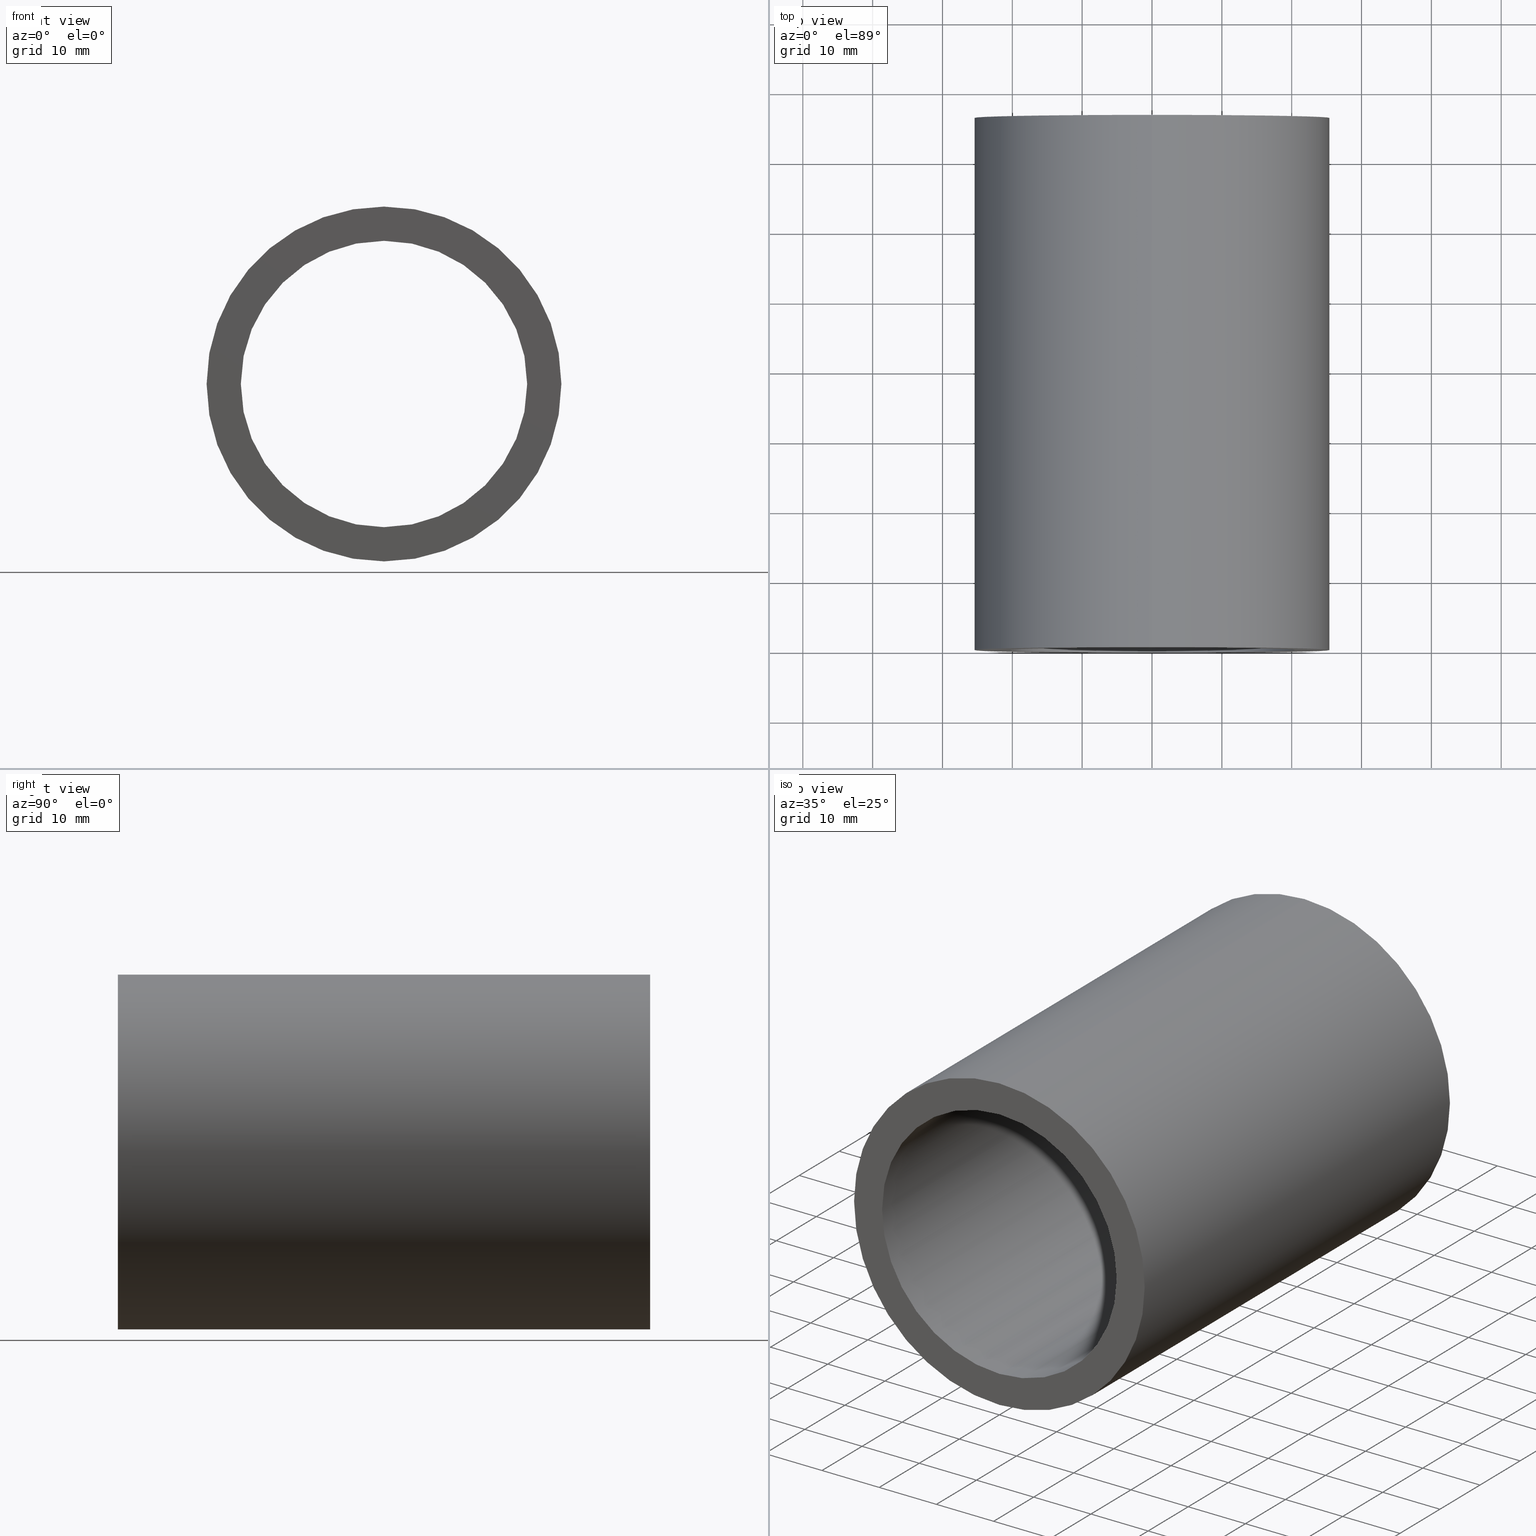
[diagram: canonical four-view strip — front | top / right | iso, engineering-drawing reading convention]
A machine part, canonical four-view strip (front | top / right | iso — engineering-drawing reading convention). The complete STEP part file that produces these views, byte-faithful:
ISO-10303-21;
HEADER;
FILE_DESCRIPTION (( 'STEP AP214' ),
    '1' );
FILE_NAME ('503028.STEP',
    '2019-09-05T06:27:18',
    ( '' ),
    ( '' ),
    'SwSTEP 2.0',
    'SolidWorks 2016',
    '' );
FILE_SCHEMA (( 'AUTOMOTIVE_DESIGN' ));
ENDSEC;

DATA;
#1 = CARTESIAN_POINT ( 'NONE',  ( 0.0000000000000000000, 76.19999999999998900, 0.0000000000000000000 ) ) ;
#2 = MECHANICAL_DESIGN_GEOMETRIC_PRESENTATION_REPRESENTATION (  '', ( #18 ), #93 ) ;
#3 = DIRECTION ( 'NONE',  ( -0.0000000000000000000, 1.000000000000000000, -0.0000000000000000000 ) ) ;
#4 = EDGE_LOOP ( 'NONE', ( #240, #125, #47, #218 ) ) ;
#5 = DIRECTION ( 'NONE',  ( 0.0000000000000000000, 0.0000000000000000000, 1.000000000000000000 ) ) ;
#6 = APPLICATION_PROTOCOL_DEFINITION ( 'draft international standard', 'automotive_design', 1998, #135 ) ;
#7 = FACE_OUTER_BOUND ( 'NONE', #45, .T. ) ;
#8 = ORIENTED_EDGE ( 'NONE', *, *, #142, .F. ) ;
#9 = STYLED_ITEM ( 'NONE', ( #96 ), #10 ) ;
#10 = ADVANCED_BREP_SHAPE_REPRESENTATION ( '503028', ( #243, #166 ), #84 ) ;
#11 = EDGE_CURVE ( 'NONE', #156, #111, #233, .T. ) ;
#12 = FACE_BOUND ( 'NONE', #201, .T. ) ;
#13 = DIRECTION ( 'NONE',  ( 0.0000000000000000000, 0.0000000000000000000, 1.000000000000000000 ) ) ;
#14 = DIRECTION ( 'NONE',  ( -0.0000000000000000000, 1.000000000000000000, -0.0000000000000000000 ) ) ;
#15 = FILL_AREA_STYLE_COLOUR ( '', #40 ) ;
#16 = ADVANCED_FACE ( 'NONE', ( #144, #85 ), #33, .F. ) ;
#17 = CARTESIAN_POINT ( 'NONE',  ( 3.110602869834279600E-015, -2.775557561562891400E-014, -25.40000000000002000 ) ) ;
#18 = STYLED_ITEM ( 'NONE', ( #99 ), #243 ) ;
#19 = DIRECTION ( 'NONE',  ( -0.0000000000000000000, 1.000000000000000000, 0.0000000000000000000 ) ) ;
#20 = CARTESIAN_POINT ( 'NONE',  ( 0.0000000000000000000, 161.3761669434274500, 0.0000000000000000000 ) ) ;
#21 = FILL_AREA_STYLE ('',( #192 ) ) ;
#22 =( NAMED_UNIT ( * ) PLANE_ANGLE_UNIT ( ) SI_UNIT ( $, .RADIAN. ) );
#23 = VECTOR ( 'NONE', #145, 1000.000000000000000 ) ;
#24 = AXIS2_PLACEMENT_3D ( 'NONE', #187, #208, #114 ) ;
#25 = SURFACE_SIDE_STYLE ('',( #143 ) ) ;
#26 = CARTESIAN_POINT ( 'NONE',  ( 0.0000000000000000000, -2.775557561562891400E-014, 0.0000000000000000000 ) ) ;
#27 = FACE_OUTER_BOUND ( 'NONE', #237, .T. ) ;
#28 = VERTEX_POINT ( 'NONE', #127 ) ;
#29 =( GEOMETRIC_REPRESENTATION_CONTEXT ( 3 ) GLOBAL_UNCERTAINTY_ASSIGNED_CONTEXT ( ( #224 ) ) GLOBAL_UNIT_ASSIGNED_CONTEXT ( ( #150, #61, #207 ) ) REPRESENTATION_CONTEXT ( 'NONE', 'WORKASPACE' ) );
#30 = CIRCLE ( 'NONE', #48, 20.50000000000002100 ) ;
#31 = AXIS2_PLACEMENT_3D ( 'NONE', #20, #91, #222 ) ;
#32 = CIRCLE ( 'NONE', #95, 20.50000000000001100 ) ;
#33 = PLANE ( 'NONE',  #129 ) ;
#34 = EDGE_CURVE ( 'NONE', #235, #117, #223, .T. ) ;
#35 = DIRECTION ( 'NONE',  ( 0.0000000000000000000, 0.0000000000000000000, 1.000000000000000000 ) ) ;
#36 = PRODUCT_DEFINITION ( 'δ֪', '', #65, #177 ) ;
#37 = SURFACE_STYLE_USAGE ( .BOTH. , #146 ) ;
#38 =( GEOMETRIC_REPRESENTATION_CONTEXT ( 3 ) GLOBAL_UNCERTAINTY_ASSIGNED_CONTEXT ( ( #180 ) ) GLOBAL_UNIT_ASSIGNED_CONTEXT ( ( #173, #119, #214 ) ) REPRESENTATION_CONTEXT ( 'NONE', 'WORKASPACE' ) );
#39 = CARTESIAN_POINT ( 'NONE',  ( 0.0000000000000000000, 76.19999999999998900, 0.0000000000000000000 ) ) ;
#40 = COLOUR_RGB ( '',1.000000000000000000, 1.000000000000000000, 1.000000000000000000 ) ;
#41 = DIRECTION ( 'NONE',  ( -0.0000000000000000000, 1.000000000000000000, -0.0000000000000000000 ) ) ;
#42 = DIRECTION ( 'NONE',  ( 0.0000000000000000000, 0.0000000000000000000, 1.000000000000000000 ) ) ;
#43 = CARTESIAN_POINT ( 'NONE',  ( 2.510525938252075700E-015, 76.19999999999998900, -20.50000000000001100 ) ) ;
#44 = FILL_AREA_STYLE_COLOUR ( '', #122 ) ;
#45 = EDGE_LOOP ( 'NONE', ( #151, #182, #97, #74 ) ) ;
#46 =( NAMED_UNIT ( * ) SI_UNIT ( $, .STERADIAN. ) SOLID_ANGLE_UNIT ( ) );
#47 = ORIENTED_EDGE ( 'NONE', *, *, #216, .T. ) ;
#48 = AXIS2_PLACEMENT_3D ( 'NONE', #239, #133, #242 ) ;
#49 = EDGE_CURVE ( 'NONE', #28, #159, #32, .T. ) ;
#50 = ORIENTED_EDGE ( 'NONE', *, *, #216, .F. ) ;
#51 = PRODUCT_RELATED_PRODUCT_CATEGORY ( 'part', '', ( #121 ) ) ;
#52 = EDGE_CURVE ( 'NONE', #111, #159, #103, .T. ) ;
#53 = FILL_AREA_STYLE ('',( #15 ) ) ;
#54 = DIRECTION ( 'NONE',  ( 0.0000000000000000000, -0.0000000000000000000, -1.000000000000000000 ) ) ;
#55 = DIRECTION ( 'NONE',  ( -0.0000000000000000000, 1.000000000000000000, -0.0000000000000000000 ) ) ;
#56 = DIRECTION ( 'NONE',  ( -0.0000000000000000000, 1.000000000000000000, -0.0000000000000000000 ) ) ;
#57 = CLOSED_SHELL ( 'NONE', ( #109, #167, #112, #181, #16, #162 ) ) ;
#58 = SURFACE_STYLE_USAGE ( .BOTH. , #188 ) ;
#59 = CARTESIAN_POINT ( 'NONE',  ( 0.0000000000000000000, 161.3761669434274500, 25.40000000000002000 ) ) ;
#60 = PRESENTATION_LAYER_ASSIGNMENT (  '', '', ( #67 ) ) ;
#61 =( NAMED_UNIT ( * ) PLANE_ANGLE_UNIT ( ) SI_UNIT ( $, .RADIAN. ) );
#62 = CARTESIAN_POINT ( 'NONE',  ( 3.110602869834279600E-015, 76.19999999999998900, -25.40000000000002000 ) ) ;
#63 = PRESENTATION_LAYER_ASSIGNMENT (  '', '', ( #18 ) ) ;
#64 = SURFACE_STYLE_FILL_AREA ( #53 ) ;
#65 = PRODUCT_DEFINITION_FORMATION_WITH_SPECIFIED_SOURCE ( '�κ�', '', #121, .NOT_KNOWN. ) ;
#66 = ORIENTED_EDGE ( 'NONE', *, *, #175, .F. ) ;
#67 = STYLED_ITEM ( 'NONE', ( #131 ), #162 ) ;
#68 = ORIENTED_EDGE ( 'NONE', *, *, #142, .T. ) ;
#69 = SHAPE_DEFINITION_REPRESENTATION ( #193, #10 ) ;
#70 = DIRECTION ( 'NONE',  ( 1.000000000000000000, 0.0000000000000000000, 0.0000000000000000000 ) ) ;
#71 = CIRCLE ( 'NONE', #212, 20.50000000000001100 ) ;
#72 = AXIS2_PLACEMENT_3D ( 'NONE', #26, #228, #5 ) ;
#73 = UNCERTAINTY_MEASURE_WITH_UNIT (LENGTH_MEASURE( 1.000000000000000100E-005 ), #220, 'distance_accuracy_value', 'NONE');
#74 = ORIENTED_EDGE ( 'NONE', *, *, #168, .F. ) ;
#75 =( LENGTH_UNIT ( ) NAMED_UNIT ( * ) SI_UNIT ( .MILLI., .METRE. ) );
#76 = MECHANICAL_DESIGN_GEOMETRIC_PRESENTATION_REPRESENTATION (  '', ( #9 ), #38 ) ;
#77 = DIRECTION ( 'NONE',  ( 0.0000000000000000000, 0.0000000000000000000, 1.000000000000000000 ) ) ;
#78 = DIRECTION ( 'NONE',  ( -0.0000000000000000000, 1.000000000000000000, -0.0000000000000000000 ) ) ;
#79 = MECHANICAL_DESIGN_GEOMETRIC_PRESENTATION_REPRESENTATION (  '', ( #67 ), #29 ) ;
#80 = CYLINDRICAL_SURFACE ( 'NONE', #31, 25.40000000000002000 ) ;
#81 = ORIENTED_EDGE ( 'NONE', *, *, #49, .F. ) ;
#82 = PLANE ( 'NONE',  #232 ) ;
#83 = SURFACE_STYLE_USAGE ( .BOTH. , #25 ) ;
#84 =( GEOMETRIC_REPRESENTATION_CONTEXT ( 3 ) GLOBAL_UNCERTAINTY_ASSIGNED_CONTEXT ( ( #73 ) ) GLOBAL_UNIT_ASSIGNED_CONTEXT ( ( #220, #120, #213 ) ) REPRESENTATION_CONTEXT ( 'NONE', 'WORKASPACE' ) );
#85 = FACE_OUTER_BOUND ( 'NONE', #206, .T. ) ;
#86 = EDGE_CURVE ( 'NONE', #159, #28, #71, .T. ) ;
#87 = VECTOR ( 'NONE', #118, 1000.000000000000000 ) ;
#88 = EDGE_LOOP ( 'NONE', ( #100, #185 ) ) ;
#89 = MECHANICAL_DESIGN_GEOMETRIC_PRESENTATION_REPRESENTATION (  '', ( #157 ), #194 ) ;
#90 = CARTESIAN_POINT ( 'NONE',  ( 0.0000000000000000000, 76.19999999999998900, 0.0000000000000000000 ) ) ;
#91 = DIRECTION ( 'NONE',  ( -0.0000000000000000000, 1.000000000000000000, -0.0000000000000000000 ) ) ;
#92 = CARTESIAN_POINT ( 'NONE',  ( 0.0000000000000000000, 161.3761669434274500, 20.50000000000001800 ) ) ;
#93 =( GEOMETRIC_REPRESENTATION_CONTEXT ( 3 ) GLOBAL_UNCERTAINTY_ASSIGNED_CONTEXT ( ( #195 ) ) GLOBAL_UNIT_ASSIGNED_CONTEXT ( ( #171, #22, #46 ) ) REPRESENTATION_CONTEXT ( 'NONE', 'WORKASPACE' ) );
#94 = CARTESIAN_POINT ( 'NONE',  ( 2.510525938252076500E-015, -2.775557561562891400E-014, -20.50000000000002100 ) ) ;
#95 = AXIS2_PLACEMENT_3D ( 'NONE', #90, #126, #77 ) ;
#96 = PRESENTATION_STYLE_ASSIGNMENT (( #83 ) ) ;
#97 = ORIENTED_EDGE ( 'NONE', *, *, #230, .F. ) ;
#98 = DIRECTION ( 'NONE',  ( 0.0000000000000000000, 0.0000000000000000000, 1.000000000000000000 ) ) ;
#99 = PRESENTATION_STYLE_ASSIGNMENT (( #155 ) ) ;
#100 = ORIENTED_EDGE ( 'NONE', *, *, #34, .F. ) ;
#101 = APPLICATION_CONTEXT ( 'automotive_design' ) ;
#102 = EDGE_LOOP ( 'NONE', ( #81, #231 ) ) ;
#103 = LINE ( 'NONE', #183, #23 ) ;
#104 = ORIENTED_EDGE ( 'NONE', *, *, #52, .T. ) ;
#105 = FACE_OUTER_BOUND ( 'NONE', #4, .T. ) ;
#106 = ORIENTED_EDGE ( 'NONE', *, *, #241, .T. ) ;
#107 = DIRECTION ( 'NONE',  ( 0.0000000000000000000, 0.0000000000000000000, 1.000000000000000000 ) ) ;
#108 = PRESENTATION_LAYER_ASSIGNMENT (  '', '', ( #157 ) ) ;
#109 = ADVANCED_FACE ( 'NONE', ( #27 ), #196, .F. ) ;
#110 = CARTESIAN_POINT ( 'NONE',  ( 0.0000000000000000000, -2.775557561562891400E-014, 0.0000000000000000000 ) ) ;
#111 = VERTEX_POINT ( 'NONE', #94 ) ;
#112 = ADVANCED_FACE ( 'NONE', ( #217, #12 ), #82, .F. ) ;
#113 = CARTESIAN_POINT ( 'NONE',  ( 20.50000000000002100, -1.424099456732195600E-014, 0.0000000000000000000 ) ) ;
#114 = DIRECTION ( 'NONE',  ( 0.0000000000000000000, 0.0000000000000000000, 1.000000000000000000 ) ) ;
#115 = LINE ( 'NONE', #225, #87 ) ;
#116 = CARTESIAN_POINT ( 'NONE',  ( 0.0000000000000000000, -2.775557561562891400E-014, 20.50000000000002100 ) ) ;
#117 = VERTEX_POINT ( 'NONE', #17 ) ;
#118 = DIRECTION ( 'NONE',  ( -0.0000000000000000000, 1.000000000000000000, -0.0000000000000000000 ) ) ;
#119 =( NAMED_UNIT ( * ) PLANE_ANGLE_UNIT ( ) SI_UNIT ( $, .RADIAN. ) );
#120 =( NAMED_UNIT ( * ) PLANE_ANGLE_UNIT ( ) SI_UNIT ( $, .RADIAN. ) );
#121 = PRODUCT ( '503028', '503028', '', ( #197 ) ) ;
#122 = COLOUR_RGB ( '',1.000000000000000000, 1.000000000000000000, 1.000000000000000000 ) ;
#123 = AXIS2_PLACEMENT_3D ( 'NONE', #160, #55, #107 ) ;
#124 = CYLINDRICAL_SURFACE ( 'NONE', #234, 25.40000000000002000 ) ;
#125 = ORIENTED_EDGE ( 'NONE', *, *, #11, .F. ) ;
#126 = DIRECTION ( 'NONE',  ( -0.0000000000000000000, 1.000000000000000000, -0.0000000000000000000 ) ) ;
#127 = CARTESIAN_POINT ( 'NONE',  ( 0.0000000000000000000, 76.19999999999998900, 20.50000000000001100 ) ) ;
#128 = SURFACE_STYLE_FILL_AREA ( #211 ) ;
#129 = AXIS2_PLACEMENT_3D ( 'NONE', #236, #205, #54 ) ;
#130 = CARTESIAN_POINT ( 'NONE',  ( 0.0000000000000000000, 76.19999999999998900, 25.40000000000002000 ) ) ;
#131 = PRESENTATION_STYLE_ASSIGNMENT (( #58 ) ) ;
#132 = ORIENTED_EDGE ( 'NONE', *, *, #230, .T. ) ;
#133 = DIRECTION ( 'NONE',  ( -0.0000000000000000000, 1.000000000000000000, -0.0000000000000000000 ) ) ;
#134 = ORIENTED_EDGE ( 'NONE', *, *, #86, .T. ) ;
#135 = APPLICATION_CONTEXT ( 'automotive_design' ) ;
#136 = APPLICATION_PROTOCOL_DEFINITION ( 'draft international standard', 'automotive_design', 1998, #101 ) ;
#137 = VERTEX_POINT ( 'NONE', #62 ) ;
#138 = EDGE_CURVE ( 'NONE', #117, #137, #115, .T. ) ;
#139 = SURFACE_STYLE_FILL_AREA ( #161 ) ;
#140 = CARTESIAN_POINT ( 'NONE',  ( 0.0000000000000000000, 161.3761669434274500, 0.0000000000000000000 ) ) ;
#141 = CARTESIAN_POINT ( 'NONE',  ( 0.0000000000000000000, 76.19999999999998900, 0.0000000000000000000 ) ) ;
#142 = EDGE_CURVE ( 'NONE', #137, #154, #227, .T. ) ;
#143 = SURFACE_STYLE_FILL_AREA ( #21 ) ;
#144 = FACE_BOUND ( 'NONE', #102, .T. ) ;
#145 = DIRECTION ( 'NONE',  ( -0.0000000000000000000, 1.000000000000000000, -0.0000000000000000000 ) ) ;
#146 = SURFACE_SIDE_STYLE ('',( #64 ) ) ;
#147 = CIRCLE ( 'NONE', #179, 25.40000000000002000 ) ;
#148 =( NAMED_UNIT ( * ) SI_UNIT ( $, .STERADIAN. ) SOLID_ANGLE_UNIT ( ) );
#149 = CARTESIAN_POINT ( 'NONE',  ( 0.0000000000000000000, 161.3761669434274500, 0.0000000000000000000 ) ) ;
#150 =( LENGTH_UNIT ( ) NAMED_UNIT ( * ) SI_UNIT ( .MILLI., .METRE. ) );
#151 = ORIENTED_EDGE ( 'NONE', *, *, #34, .T. ) ;
#152 = DIRECTION ( 'NONE',  ( -0.0000000000000000000, 1.000000000000000000, -0.0000000000000000000 ) ) ;
#153 = AXIS2_PLACEMENT_3D ( 'NONE', #39, #78, #190 ) ;
#154 = VERTEX_POINT ( 'NONE', #130 ) ;
#155 = SURFACE_STYLE_USAGE ( .BOTH. , #170 ) ;
#156 = VERTEX_POINT ( 'NONE', #116 ) ;
#157 = STYLED_ITEM ( 'NONE', ( #158 ), #109 ) ;
#158 = PRESENTATION_STYLE_ASSIGNMENT (( #37 ) ) ;
#159 = VERTEX_POINT ( 'NONE', #43 ) ;
#160 = CARTESIAN_POINT ( 'NONE',  ( 0.0000000000000000000, -2.775557561562891400E-014, 0.0000000000000000000 ) ) ;
#161 = FILL_AREA_STYLE ('',( #44 ) ) ;
#162 = ADVANCED_FACE ( 'NONE', ( #105 ), #176, .F. ) ;
#163 = DIRECTION ( 'NONE',  ( -0.0000000000000000000, 1.000000000000000000, -0.0000000000000000000 ) ) ;
#164 = VECTOR ( 'NONE', #3, 1000.000000000000000 ) ;
#165 = DIRECTION ( 'NONE',  ( 0.0000000000000000000, 0.0000000000000000000, 1.000000000000000000 ) ) ;
#166 = AXIS2_PLACEMENT_3D ( 'NONE', #229, #98, #70 ) ;
#167 = ADVANCED_FACE ( 'NONE', ( #7 ), #80, .T. ) ;
#168 = EDGE_CURVE ( 'NONE', #235, #154, #215, .T. ) ;
#169 = DIRECTION ( 'NONE',  ( 0.0000000000000000000, 0.0000000000000000000, 1.000000000000000000 ) ) ;
#170 = SURFACE_SIDE_STYLE ('',( #139 ) ) ;
#171 =( LENGTH_UNIT ( ) NAMED_UNIT ( * ) SI_UNIT ( .MILLI., .METRE. ) );
#172 = UNCERTAINTY_MEASURE_WITH_UNIT (LENGTH_MEASURE( 1.000000000000000100E-005 ), #75, 'distance_accuracy_value', 'NONE');
#173 =( LENGTH_UNIT ( ) NAMED_UNIT ( * ) SI_UNIT ( .MILLI., .METRE. ) );
#174 = LINE ( 'NONE', #92, #164 ) ;
#175 = EDGE_CURVE ( 'NONE', #111, #156, #30, .T. ) ;
#176 = CYLINDRICAL_SURFACE ( 'NONE', #24, 20.50000000000001800 ) ;
#177 = PRODUCT_DEFINITION_CONTEXT ( 'detailed design', #101, 'design' ) ;
#178 = COLOUR_RGB ( '',1.000000000000000000, 1.000000000000000000, 1.000000000000000000 ) ;
#179 = AXIS2_PLACEMENT_3D ( 'NONE', #1, #152, #169 ) ;
#180 = UNCERTAINTY_MEASURE_WITH_UNIT (LENGTH_MEASURE( 1.000000000000000100E-005 ), #173, 'distance_accuracy_value', 'NONE');
#181 = ADVANCED_FACE ( 'NONE', ( #184 ), #124, .T. ) ;
#182 = ORIENTED_EDGE ( 'NONE', *, *, #138, .T. ) ;
#183 = CARTESIAN_POINT ( 'NONE',  ( 2.510525938252076100E-015, 161.3761669434274500, -20.50000000000001800 ) ) ;
#184 = FACE_OUTER_BOUND ( 'NONE', #204, .T. ) ;
#185 = ORIENTED_EDGE ( 'NONE', *, *, #241, .F. ) ;
#186 = CARTESIAN_POINT ( 'NONE',  ( 0.0000000000000000000, -2.775557561562891400E-014, 25.40000000000002000 ) ) ;
#187 = CARTESIAN_POINT ( 'NONE',  ( 0.0000000000000000000, 161.3761669434274500, 0.0000000000000000000 ) ) ;
#188 = SURFACE_SIDE_STYLE ('',( #128 ) ) ;
#189 = COLOUR_RGB ( '',1.000000000000000000, 1.000000000000000000, 1.000000000000000000 ) ;
#190 = DIRECTION ( 'NONE',  ( 0.0000000000000000000, 0.0000000000000000000, 1.000000000000000000 ) ) ;
#191 = ORIENTED_EDGE ( 'NONE', *, *, #11, .T. ) ;
#192 = FILL_AREA_STYLE_COLOUR ( '', #189 ) ;
#193 = PRODUCT_DEFINITION_SHAPE ( 'NONE', 'NONE',  #36 ) ;
#194 =( GEOMETRIC_REPRESENTATION_CONTEXT ( 3 ) GLOBAL_UNCERTAINTY_ASSIGNED_CONTEXT ( ( #172 ) ) GLOBAL_UNIT_ASSIGNED_CONTEXT ( ( #75, #221, #148 ) ) REPRESENTATION_CONTEXT ( 'NONE', 'WORKASPACE' ) );
#195 = UNCERTAINTY_MEASURE_WITH_UNIT (LENGTH_MEASURE( 1.000000000000000100E-005 ), #171, 'distance_accuracy_value', 'NONE');
#196 = CYLINDRICAL_SURFACE ( 'NONE', #219, 20.50000000000001800 ) ;
#197 = PRODUCT_CONTEXT ( 'NONE', #135, 'mechanical' ) ;
#198 = ORIENTED_EDGE ( 'NONE', *, *, #138, .F. ) ;
#199 = ORIENTED_EDGE ( 'NONE', *, *, #168, .T. ) ;
#200 = VECTOR ( 'NONE', #41, 1000.000000000000000 ) ;
#201 = EDGE_LOOP ( 'NONE', ( #191, #210 ) ) ;
#202 = PRESENTATION_LAYER_ASSIGNMENT (  '', '', ( #9 ) ) ;
#203 = AXIS2_PLACEMENT_3D ( 'NONE', #110, #238, #13 ) ;
#204 = EDGE_LOOP ( 'NONE', ( #198, #106, #199, #8 ) ) ;
#205 = DIRECTION ( 'NONE',  ( 0.0000000000000000000, -1.000000000000000000, 0.0000000000000000000 ) ) ;
#206 = EDGE_LOOP ( 'NONE', ( #132, #68 ) ) ;
#207 =( NAMED_UNIT ( * ) SI_UNIT ( $, .STERADIAN. ) SOLID_ANGLE_UNIT ( ) );
#208 = DIRECTION ( 'NONE',  ( -0.0000000000000000000, 1.000000000000000000, -0.0000000000000000000 ) ) ;
#209 = CIRCLE ( 'NONE', #72, 25.40000000000002000 ) ;
#210 = ORIENTED_EDGE ( 'NONE', *, *, #175, .T. ) ;
#211 = FILL_AREA_STYLE ('',( #244 ) ) ;
#212 = AXIS2_PLACEMENT_3D ( 'NONE', #141, #56, #35 ) ;
#213 =( NAMED_UNIT ( * ) SI_UNIT ( $, .STERADIAN. ) SOLID_ANGLE_UNIT ( ) );
#214 =( NAMED_UNIT ( * ) SI_UNIT ( $, .STERADIAN. ) SOLID_ANGLE_UNIT ( ) );
#215 = LINE ( 'NONE', #59, #200 ) ;
#216 = EDGE_CURVE ( 'NONE', #156, #28, #174, .T. ) ;
#217 = FACE_OUTER_BOUND ( 'NONE', #88, .T. ) ;
#218 = ORIENTED_EDGE ( 'NONE', *, *, #49, .T. ) ;
#219 = AXIS2_PLACEMENT_3D ( 'NONE', #140, #14, #165 ) ;
#220 =( LENGTH_UNIT ( ) NAMED_UNIT ( * ) SI_UNIT ( .MILLI., .METRE. ) );
#221 =( NAMED_UNIT ( * ) PLANE_ANGLE_UNIT ( ) SI_UNIT ( $, .RADIAN. ) );
#222 = DIRECTION ( 'NONE',  ( 0.0000000000000000000, 0.0000000000000000000, 1.000000000000000000 ) ) ;
#223 = CIRCLE ( 'NONE', #203, 25.40000000000002000 ) ;
#224 = UNCERTAINTY_MEASURE_WITH_UNIT (LENGTH_MEASURE( 1.000000000000000100E-005 ), #150, 'distance_accuracy_value', 'NONE');
#225 = CARTESIAN_POINT ( 'NONE',  ( 3.110602869834279600E-015, 161.3761669434274500, -25.40000000000002000 ) ) ;
#226 = DIRECTION ( 'NONE',  ( 0.0000000000000000000, 0.0000000000000000000, 1.000000000000000000 ) ) ;
#227 = CIRCLE ( 'NONE', #153, 25.40000000000002000 ) ;
#228 = DIRECTION ( 'NONE',  ( -0.0000000000000000000, 1.000000000000000000, -0.0000000000000000000 ) ) ;
#229 = CARTESIAN_POINT ( 'NONE',  ( 0.0000000000000000000, 0.0000000000000000000, 0.0000000000000000000 ) ) ;
#230 = EDGE_CURVE ( 'NONE', #154, #137, #147, .T. ) ;
#231 = ORIENTED_EDGE ( 'NONE', *, *, #86, .F. ) ;
#232 = AXIS2_PLACEMENT_3D ( 'NONE', #113, #19, #226 ) ;
#233 = CIRCLE ( 'NONE', #123, 20.50000000000002100 ) ;
#234 = AXIS2_PLACEMENT_3D ( 'NONE', #149, #163, #42 ) ;
#235 = VERTEX_POINT ( 'NONE', #186 ) ;
#236 = CARTESIAN_POINT ( 'NONE',  ( 20.50000000000001100, 76.19999999999998900, 0.0000000000000000000 ) ) ;
#237 = EDGE_LOOP ( 'NONE', ( #66, #104, #134, #50 ) ) ;
#238 = DIRECTION ( 'NONE',  ( -0.0000000000000000000, 1.000000000000000000, -0.0000000000000000000 ) ) ;
#239 = CARTESIAN_POINT ( 'NONE',  ( 0.0000000000000000000, -2.775557561562891400E-014, 0.0000000000000000000 ) ) ;
#240 = ORIENTED_EDGE ( 'NONE', *, *, #52, .F. ) ;
#241 = EDGE_CURVE ( 'NONE', #117, #235, #209, .T. ) ;
#242 = DIRECTION ( 'NONE',  ( 0.0000000000000000000, 0.0000000000000000000, 1.000000000000000000 ) ) ;
#243 = MANIFOLD_SOLID_BREP ( '��ת1', #57 ) ;
#244 = FILL_AREA_STYLE_COLOUR ( '', #178 ) ;
ENDSEC;
END-ISO-10303-21;
